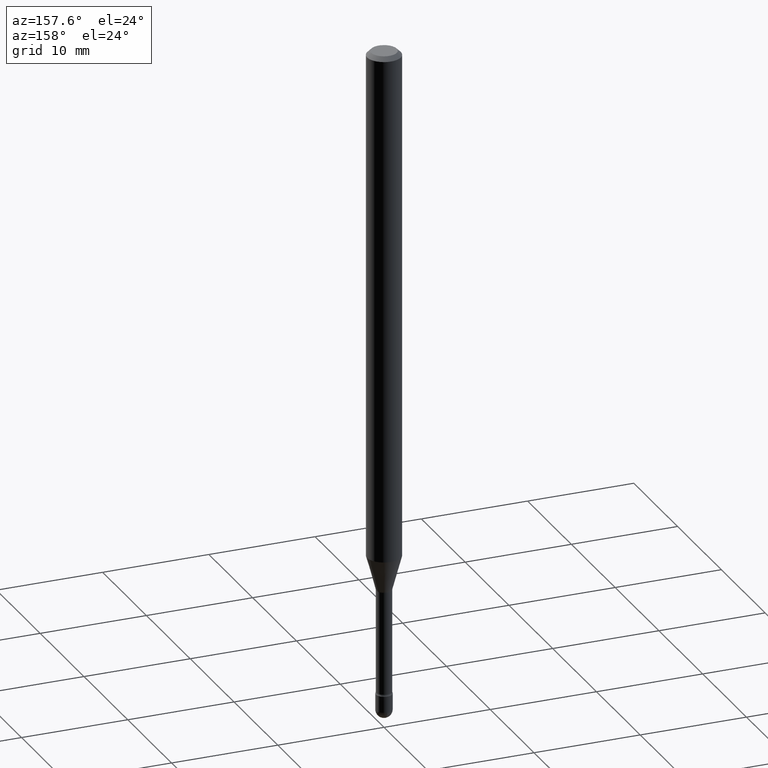
[diagram: clean part render]
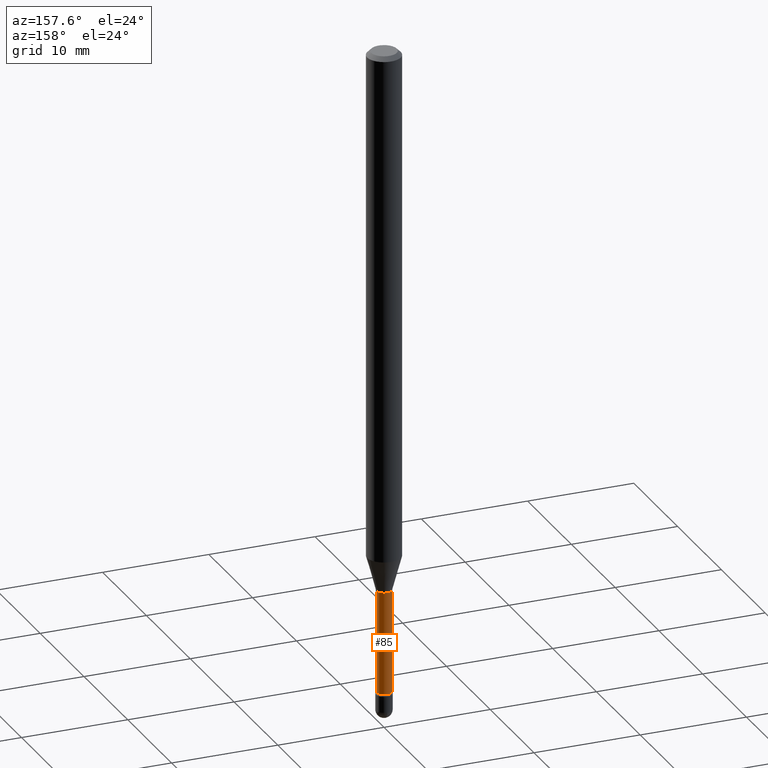
[diagram: same view with one face highlighted and labeled with its STEP entity id]
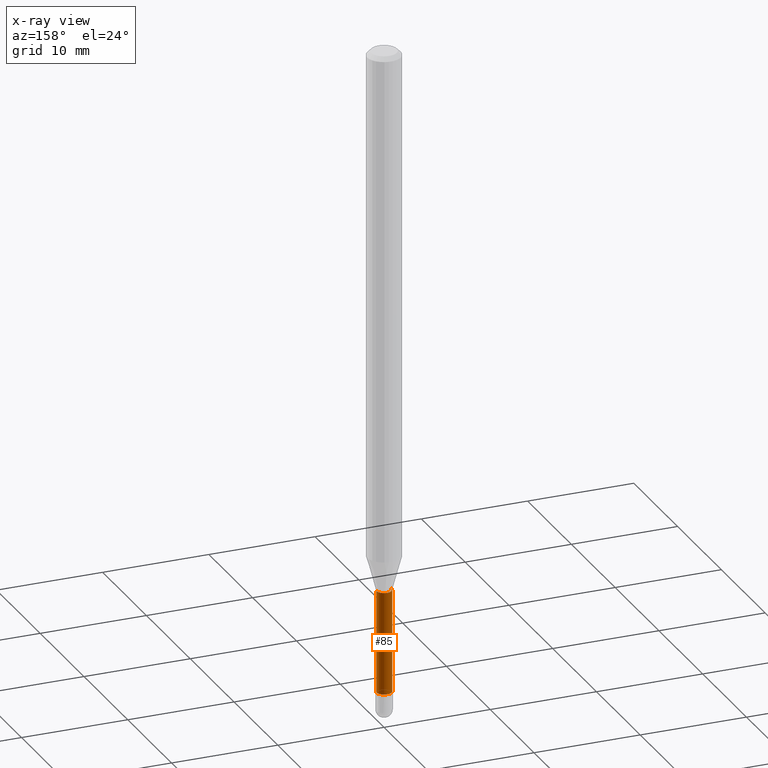
[diagram: x-ray of the same camera — body ghosted, the highlighted face saturated]
A machine part, auxiliary view. The second image highlights one B-rep face of the part: STEP entity #85.
The next image is the same camera in x-ray: the body ghosted, the highlighted face saturated — about 0% of this face is hidden behind the body in this view.
In plain terms, the highlighted cylindrical surface (edge-blend (fillet) strip) has radius 0.7163 mm, axis along (-0, 0, 1).
Its self-contained STEP definition (entity closure, byte-faithful):
#5 = ORIENTED_EDGE ( 'NONE', *, *, #445, .F. ) ;
#33 = ORIENTED_EDGE ( 'NONE', *, *, #406, .T. ) ;
#35 = CARTESIAN_POINT ( 'NONE',  ( 0.02819999999999999590, -1.969195475107510260E-16, 4.780733988912474930E-16 ) ) ;
#55 = VERTEX_POINT ( 'NONE', #104 ) ;
#85 = ADVANCED_FACE ( 'NONE', ( #313 ), #170, .T. ) ;
#94 = CARTESIAN_POINT ( 'NONE',  ( -1.169113584055446105E-44, 1.669184350826100908E-30, 4.780733988912460139E-16 ) ) ;
#97 = VERTEX_POINT ( 'NONE', #520 ) ;
#103 = LINE ( 'NONE', #447, #472 ) ;
#104 = CARTESIAN_POINT ( 'NONE',  ( 0.02819999999999999590, -8.586514147837976028E-15, -2.402875394747777893 ) ) ;
#127 = DIRECTION ( 'NONE',  ( -2.445468806185136597E-29, 3.491481338843145583E-15, 1.000000000000000000 ) ) ;
#149 = CARTESIAN_POINT ( 'NONE',  ( 4.944676269635571097E-29, -7.059687238041231398E-15, -2.021974787463811207 ) ) ;
#153 = CARTESIAN_POINT ( 'NONE',  ( 0.02819999999999999243, -7.256606785551984890E-15, -2.021974787463811207 ) ) ;
#157 = CIRCLE ( 'NONE', #436, 0.02819999999999999590 ) ;
#165 = DIRECTION ( 'NONE',  ( -2.445468806185136877E-29, 3.491481338843145188E-15, 1.000000000000000000 ) ) ;
#170 = CYLINDRICAL_SURFACE ( 'NONE', #407, 0.02819999999999999590 ) ;
#195 = VERTEX_POINT ( 'NONE', #443 ) ;
#239 = DIRECTION ( 'NONE',  ( -2.445468806185136597E-29, 3.491481338843145583E-15, 1.000000000000000000 ) ) ;
#242 = LINE ( 'NONE', #35, #515 ) ;
#279 = CARTESIAN_POINT ( 'NONE',  ( 5.876156823005487003E-29, -8.389594600327222537E-15, -2.402875394747777893 ) ) ;
#313 = FACE_OUTER_BOUND ( 'NONE', #482, .T. ) ;
#318 = CIRCLE ( 'NONE', #522, 0.02819999999999999243 ) ;
#332 = EDGE_CURVE ( 'NONE', #55, #455, #242, .T. ) ;
#352 = DIRECTION ( 'NONE',  ( 1.000000000000000000, -6.982962677686266711E-15, 4.947382444955205209E-29 ) ) ;
#371 = EDGE_CURVE ( 'NONE', #97, #195, #103, .T. ) ;
#406 = EDGE_CURVE ( 'NONE', #55, #97, #157, .T. ) ;
#407 = AXIS2_PLACEMENT_3D ( 'NONE', #94, #127, #352 ) ;
#410 = DIRECTION ( 'NONE',  ( 1.000000000000000000, -6.982962677686278543E-15, 0.000000000000000000 ) ) ;
#413 = DIRECTION ( 'NONE',  ( -2.445468806185136877E-29, 3.491481338843145188E-15, 1.000000000000000000 ) ) ;
#436 = AXIS2_PLACEMENT_3D ( 'NONE', #279, #239, #410 ) ;
#437 = ORIENTED_EDGE ( 'NONE', *, *, #371, .T. ) ;
#443 = CARTESIAN_POINT ( 'NONE',  ( -0.02819999999999999243, -7.524267867699879484E-15, -2.021974787463811207 ) ) ;
#445 = EDGE_CURVE ( 'NONE', #455, #195, #318, .T. ) ;
#447 = CARTESIAN_POINT ( 'NONE',  ( -0.02819999999999999590, 2.003730514843498996E-16, 4.780733988912446334E-16 ) ) ;
#455 = VERTEX_POINT ( 'NONE', #153 ) ;
#472 = VECTOR ( 'NONE', #165, 39.37007874015748143 ) ;
#482 = EDGE_LOOP ( 'NONE', ( #33, #437, #5, #532 ) ) ;
#500 = DIRECTION ( 'NONE',  ( -2.445468806185136597E-29, 3.491481338843145583E-15, 1.000000000000000000 ) ) ;
#515 = VECTOR ( 'NONE', #413, 39.37007874015748143 ) ;
#520 = CARTESIAN_POINT ( 'NONE',  ( -0.02819999999999999590, -8.195264377363413638E-15, -2.402875394747777893 ) ) ;
#522 = AXIS2_PLACEMENT_3D ( 'NONE', #149, #500, #551 ) ;
#532 = ORIENTED_EDGE ( 'NONE', *, *, #332, .F. ) ;
#551 = DIRECTION ( 'NONE',  ( 1.000000000000000000, -6.982962677686279332E-15, 0.000000000000000000 ) ) ;